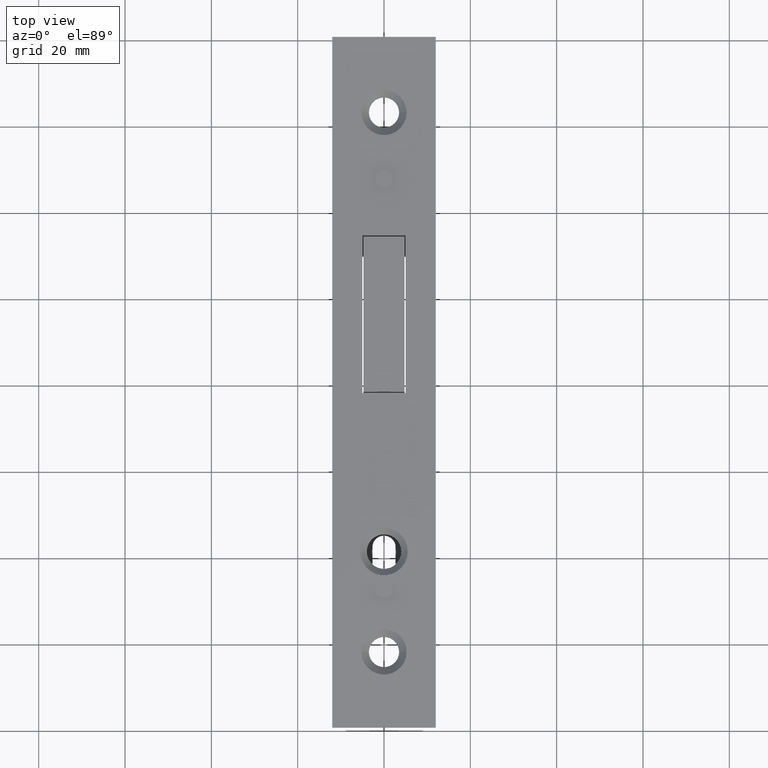
[diagram: clean part render]
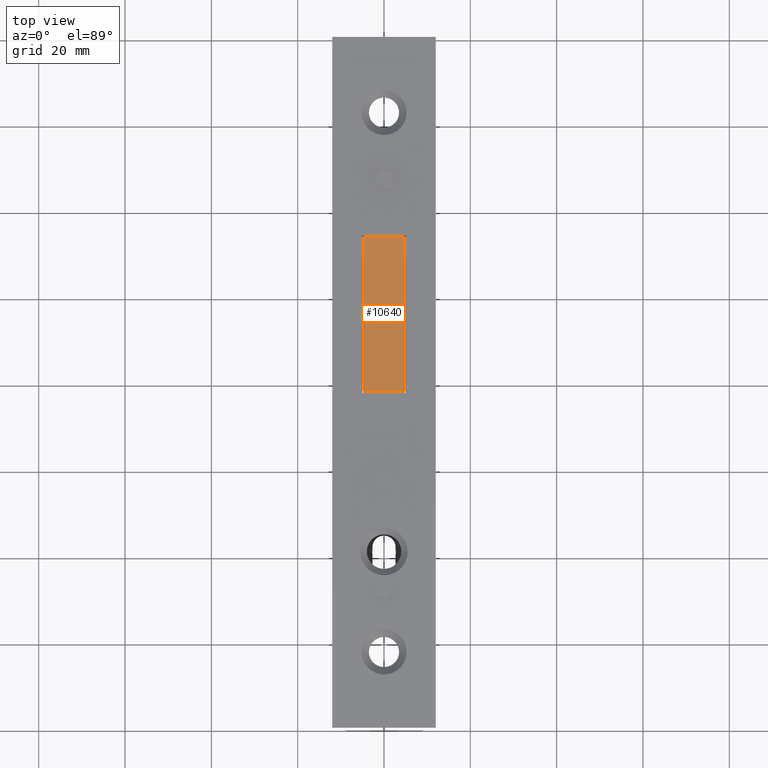
[diagram: same view with one face highlighted and labeled with its STEP entity id]
A machine part, top view. The second image highlights one B-rep face of the part: STEP entity #10640.
In plain terms, the highlighted planar face has unit normal (0, -0, 1).
Its self-contained STEP definition (entity closure, byte-faithful):
#348 = CARTESIAN_POINT ( 'NONE',  ( -4.750000000000029310, 33.74999999999998579, 2.999999999999999112 ) ) ;
#516 = DIRECTION ( 'NONE',  ( 1.000000000000000000, 9.130123557772674497E-17, 0.000000000000000000 ) ) ;
#740 = VECTOR ( 'NONE', #516, 1000.000000000000000 ) ;
#1492 = VECTOR ( 'NONE', #12242, 1000.000000000000000 ) ;
#1669 = EDGE_CURVE ( 'NONE', #4817, #5275, #3070, .T. ) ;
#1873 = LINE ( 'NONE', #11058, #12053 ) ;
#2058 = VERTEX_POINT ( 'NONE', #348 ) ;
#2724 = AXIS2_PLACEMENT_3D ( 'NONE', #13382, #9289, #5209 ) ;
#2752 = DIRECTION ( 'NONE',  ( -1.000000000000000000, 0.000000000000000000, 0.000000000000000000 ) ) ;
#2759 = CARTESIAN_POINT ( 'NONE',  ( -4.750000000000029310, 33.74999999999998579, 2.999999999999999112 ) ) ;
#2905 = LINE ( 'NONE', #12732, #3979 ) ;
#3044 = DIRECTION ( 'NONE',  ( 0.000000000000000000, 1.000000000000000000, 0.000000000000000000 ) ) ;
#3070 = LINE ( 'NONE', #4598, #740 ) ;
#3081 = LINE ( 'NONE', #2759, #1492 ) ;
#3389 = CARTESIAN_POINT ( 'NONE',  ( 4.749999999999970690, 33.74999999999998579, 2.999999999999999112 ) ) ;
#3979 = VECTOR ( 'NONE', #3044, 1000.000000000000000 ) ;
#4598 = CARTESIAN_POINT ( 'NONE',  ( -4.750000000000024869, -2.250000000000008882, 2.999999999999999112 ) ) ;
#4817 = VERTEX_POINT ( 'NONE', #6727 ) ;
#5209 = DIRECTION ( 'NONE',  ( 1.000000000000000000, 0.000000000000000000, -0.000000000000000000 ) ) ;
#5275 = VERTEX_POINT ( 'NONE', #15948 ) ;
#5300 = ORIENTED_EDGE ( 'NONE', *, *, #9053, .T. ) ;
#6245 = EDGE_CURVE ( 'NONE', #13796, #2058, #1873, .T. ) ;
#6346 = EDGE_CURVE ( 'NONE', #5275, #13796, #2905, .T. ) ;
#6727 = CARTESIAN_POINT ( 'NONE',  ( -4.750000000000024869, -2.250000000000008882, 2.999999999999999112 ) ) ;
#7222 = ORIENTED_EDGE ( 'NONE', *, *, #6245, .T. ) ;
#9053 = EDGE_CURVE ( 'NONE', #2058, #4817, #3081, .T. ) ;
#9289 = DIRECTION ( 'NONE',  ( 0.000000000000000000, -0.000000000000000000, 1.000000000000000000 ) ) ;
#10640 = ADVANCED_FACE ( 'NONE', ( #16015 ), #16101, .T. ) ;
#11058 = CARTESIAN_POINT ( 'NONE',  ( 4.749999999999970690, 33.74999999999998579, 2.999999999999999112 ) ) ;
#12053 = VECTOR ( 'NONE', #2752, 1000.000000000000000 ) ;
#12242 = DIRECTION ( 'NONE',  ( 1.204669080539449344E-16, -1.000000000000000000, 0.000000000000000000 ) ) ;
#12732 = CARTESIAN_POINT ( 'NONE',  ( 4.749999999999970690, -2.250000000000007994, 2.999999999999999112 ) ) ;
#13382 = CARTESIAN_POINT ( 'NONE',  ( 0.000000000000000000, 0.000000000000000000, 2.999999999999999112 ) ) ;
#13796 = VERTEX_POINT ( 'NONE', #3389 ) ;
#14879 = ORIENTED_EDGE ( 'NONE', *, *, #1669, .T. ) ;
#15565 = ORIENTED_EDGE ( 'NONE', *, *, #6346, .T. ) ;
#15948 = CARTESIAN_POINT ( 'NONE',  ( 4.749999999999970690, -2.250000000000007994, 2.999999999999999112 ) ) ;
#16015 = FACE_OUTER_BOUND ( 'NONE', #17573, .T. ) ;
#16101 = PLANE ( 'NONE',  #2724 ) ;
#17573 = EDGE_LOOP ( 'NONE', ( #15565, #7222, #5300, #14879 ) ) ;